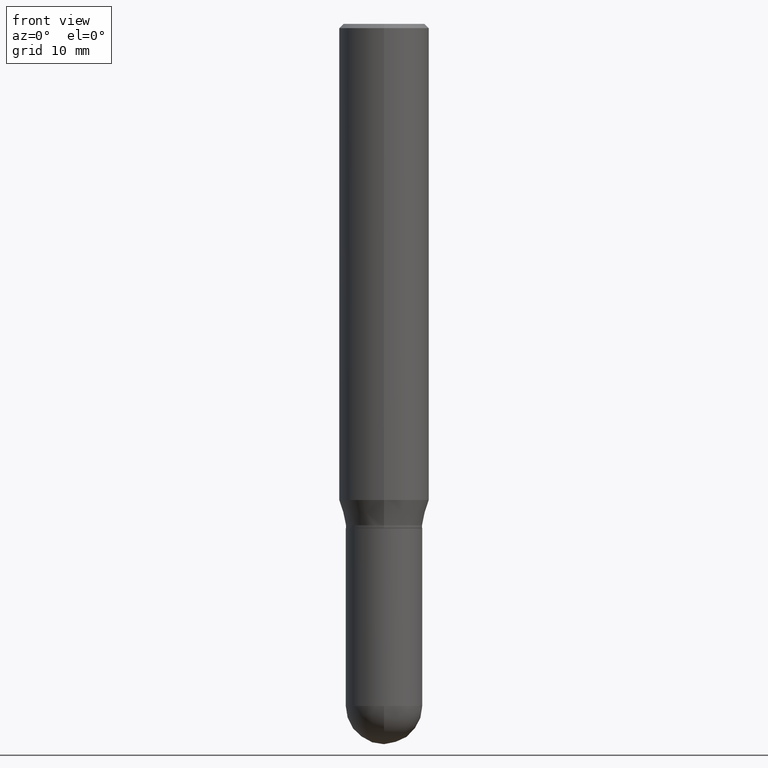
[diagram: clean part render]
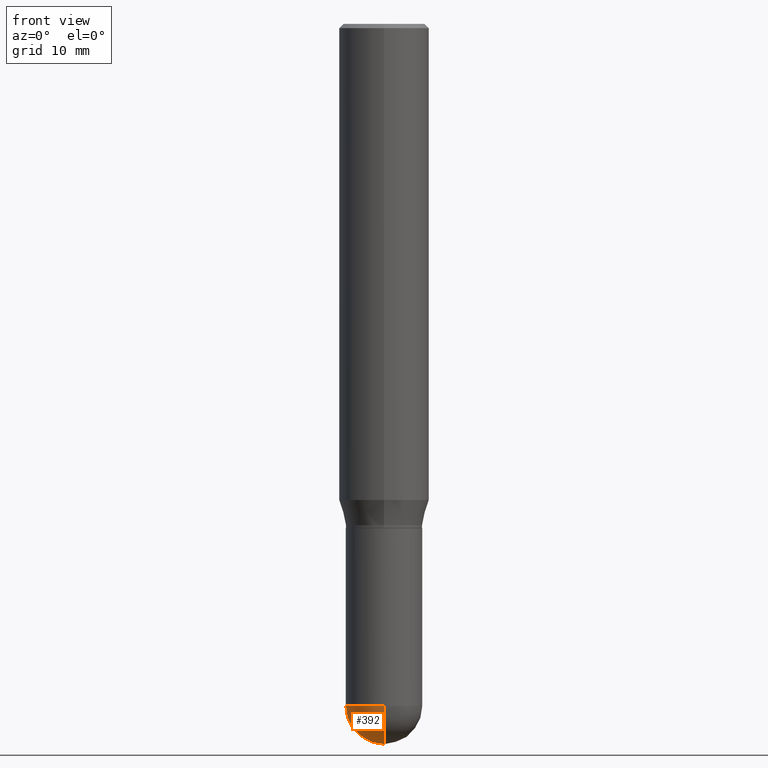
[diagram: same view with one face highlighted and labeled with its STEP entity id]
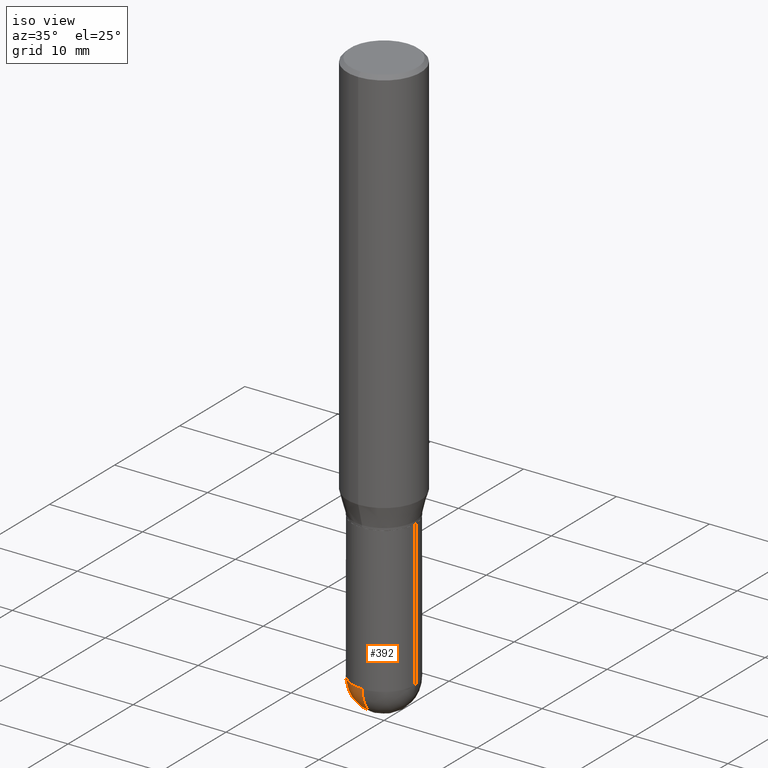
[diagram: same view with one face highlighted and labeled with its STEP entity id]
A machine part, front view. The second image highlights one B-rep face of the part: STEP entity #392.
A second angle (iso view) of the same face is appended — the face is thin or edge-on in the first view.
In plain terms, the highlighted spherical surface has radius 3.3731 mm.
Its self-contained STEP definition (entity closure, byte-faithful):
#47 = ORIENTED_EDGE ( 'NONE', *, *, #481, .F. ) ;
#50 = CARTESIAN_POINT ( 'NONE',  ( -0.1328000000000000014, -6.243962731053086807E-15, -2.367199999999999971 ) ) ;
#78 = CIRCLE ( 'NONE', #181, 0.1328000000000000014 ) ;
#90 = DIRECTION ( 'NONE',  ( 1.000000000000000000, -6.982962677686263555E-15, 0.000000000000000000 ) ) ;
#99 = DIRECTION ( 'NONE',  ( 6.982962677686265922E-15, 1.000000000000000000, -4.114228906120878260E-15 ) ) ;
#117 = SPHERICAL_SURFACE ( 'NONE', #317, 0.1328000000000000014 ) ;
#127 = DIRECTION ( 'NONE',  ( 1.000000000000000000, -6.982962677686263555E-15, 0.000000000000000000 ) ) ;
#173 = AXIS2_PLACEMENT_3D ( 'NONE', #333, #298, #454 ) ;
#181 = AXIS2_PLACEMENT_3D ( 'NONE', #478, #395, #127 ) ;
#187 = CARTESIAN_POINT ( 'NONE',  ( 5.777557149681153201E-29, -8.281297934802172088E-15, -2.367199999999999971 ) ) ;
#191 = DIRECTION ( 'NONE',  ( -1.000000000000000000, 7.105427357601001070E-15, -4.926315508542082329E-29 ) ) ;
#192 = CIRCLE ( 'NONE', #173, 0.1328000000000000014 ) ;
#199 = EDGE_CURVE ( 'NONE', #352, #219, #233, .T. ) ;
#219 = VERTEX_POINT ( 'NONE', #433 ) ;
#233 = CIRCLE ( 'NONE', #499, 0.1328000000000000014 ) ;
#243 = CARTESIAN_POINT ( 'NONE',  ( 9.273374435967940064E-16, 0.1327999999999917302, -2.367200000000000415 ) ) ;
#247 = EDGE_LOOP ( 'NONE', ( #47, #361, #323, #406 ) ) ;
#268 = DIRECTION ( 'NONE',  ( -7.105427357601001859E-15, -1.000000000000000000, 0.000000000000000000 ) ) ;
#277 = CARTESIAN_POINT ( 'NONE',  ( 5.777557149681153201E-29, -8.281297934802172088E-15, -2.367199999999999971 ) ) ;
#292 = VERTEX_POINT ( 'NONE', #50 ) ;
#298 = DIRECTION ( 'NONE',  ( 1.000000000000000000, -6.982962677686265922E-15, 4.883557194083112340E-29 ) ) ;
#299 = VERTEX_POINT ( 'NONE', #243 ) ;
#314 = DIRECTION ( 'NONE',  ( -2.445468806185136597E-29, 3.491481338843145583E-15, 1.000000000000000000 ) ) ;
#317 = AXIS2_PLACEMENT_3D ( 'NONE', #277, #441, #99 ) ;
#323 = ORIENTED_EDGE ( 'NONE', *, *, #381, .F. ) ;
#333 = CARTESIAN_POINT ( 'NONE',  ( 5.777557149681153201E-29, -8.281297934802172088E-15, -2.367199999999999971 ) ) ;
#352 = VERTEX_POINT ( 'NONE', #353 ) ;
#353 = CARTESIAN_POINT ( 'NONE',  ( 6.107993711302689769E-29, -8.736835001854202867E-15, -2.500000000000000000 ) ) ;
#361 = ORIENTED_EDGE ( 'NONE', *, *, #199, .T. ) ;
#381 = EDGE_CURVE ( 'NONE', #292, #219, #78, .T. ) ;
#389 = EDGE_CURVE ( 'NONE', #299, #292, #488, .T. ) ;
#392 = ADVANCED_FACE ( 'NONE', ( #404 ), #117, .T. ) ;
#395 = DIRECTION ( 'NONE',  ( -2.445468806185136597E-29, 3.491481338843145583E-15, 1.000000000000000000 ) ) ;
#404 = FACE_OUTER_BOUND ( 'NONE', #247, .T. ) ;
#406 = ORIENTED_EDGE ( 'NONE', *, *, #389, .F. ) ;
#433 = CARTESIAN_POINT ( 'NONE',  ( -9.436007530893550753E-16, -0.1328000000000082725, -2.367199999999999083 ) ) ;
#441 = DIRECTION ( 'NONE',  ( -1.000000000000000000, 6.982962677686265922E-15, -4.883557194083112340E-29 ) ) ;
#446 = CARTESIAN_POINT ( 'NONE',  ( 5.788913758001455526E-29, -8.265034625309493084E-15, -2.367199999999999971 ) ) ;
#454 = DIRECTION ( 'NONE',  ( 6.982962677686266711E-15, 1.000000000000000000, 0.000000000000000000 ) ) ;
#474 = AXIS2_PLACEMENT_3D ( 'NONE', #446, #314, #90 ) ;
#478 = CARTESIAN_POINT ( 'NONE',  ( 5.788913758001455526E-29, -8.265034625309493084E-15, -2.367199999999999971 ) ) ;
#481 = EDGE_CURVE ( 'NONE', #352, #299, #192, .T. ) ;
#488 = CIRCLE ( 'NONE', #474, 0.1328000000000000014 ) ;
#499 = AXIS2_PLACEMENT_3D ( 'NONE', #187, #191, #268 ) ;